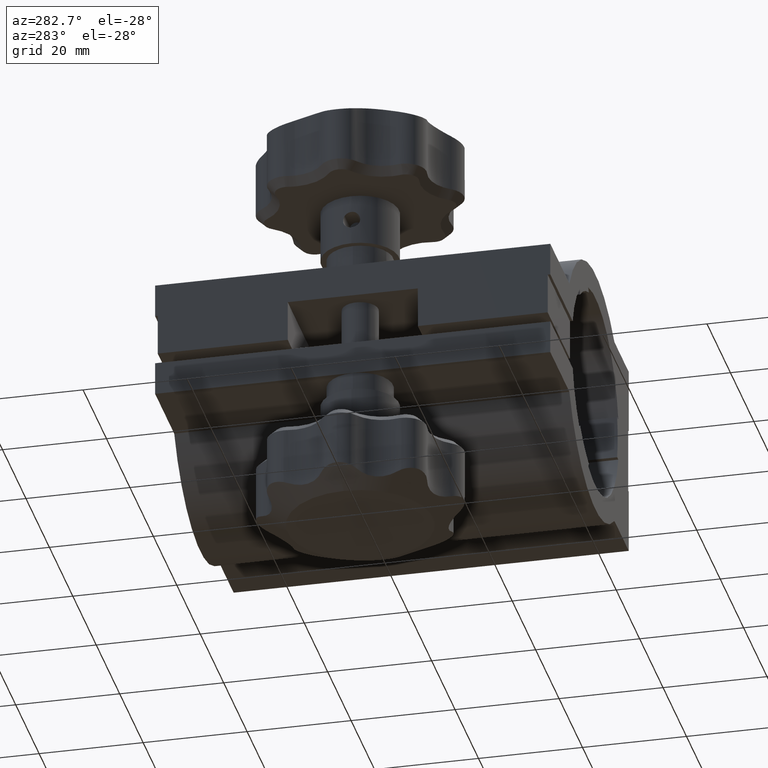
[diagram: clean part render]
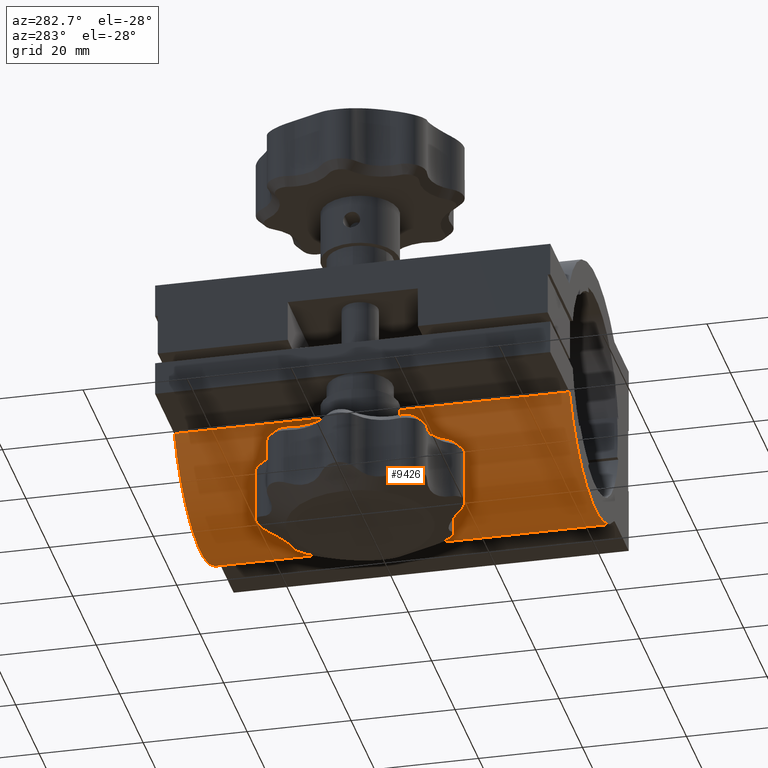
[diagram: same view with one face highlighted and labeled with its STEP entity id]
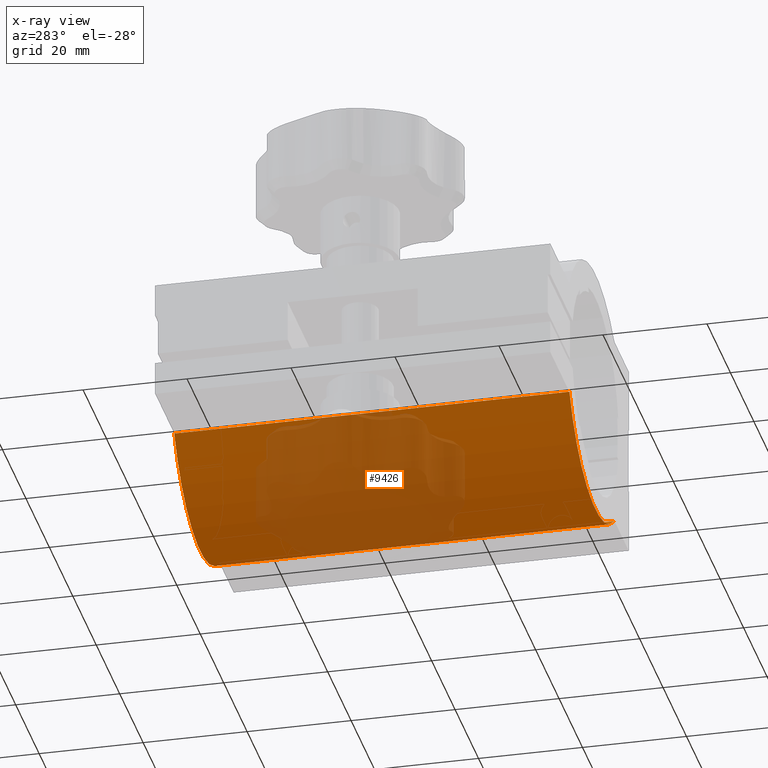
[diagram: x-ray of the same camera — body ghosted, the highlighted face saturated]
A machine part, auxiliary view. The second image highlights one B-rep face of the part: STEP entity #9426.
The next image is the same camera in x-ray: the body ghosted, the highlighted face saturated — about 46% of this face is hidden behind the body in this view.
In plain terms, the highlighted cylindrical surface (partial cylindrical patch) has radius 25 mm, axis along (-0, 1, 0).
Its self-contained STEP definition (entity closure, byte-faithful):
#75 = VERTEX_POINT ( 'NONE', #9879 ) ;
#184 = DIRECTION ( 'NONE',  ( -5.925880749895129100E-031, 1.000000000000000000, 3.170080688461390700E-031 ) ) ;
#353 = ORIENTED_EDGE ( 'NONE', *, *, #5543, .T. ) ;
#578 = VECTOR ( 'NONE', #6187, 1000.000000000000000 ) ;
#594 = VERTEX_POINT ( 'NONE', #868 ) ;
#868 = CARTESIAN_POINT ( 'NONE',  ( -22.19797288042313400, -76.00000000000001400, -11.49999999999984400 ) ) ;
#952 = CIRCLE ( 'NONE', #6715, 25.00000000000000000 ) ;
#1658 = DIRECTION ( 'NONE',  ( 1.000000000000000000, -5.925880749895131700E-031, -3.821246512671355900E-017 ) ) ;
#1972 = CYLINDRICAL_SURFACE ( 'NONE', #2384, 25.00000000000000000 ) ;
#2384 = AXIS2_PLACEMENT_3D ( 'NONE', #2774, #184, #2814 ) ;
#2738 = DIRECTION ( 'NONE',  ( -5.925880749895129100E-031, 1.000000000000000000, 3.170080688461390700E-031 ) ) ;
#2746 = CARTESIAN_POINT ( 'NONE',  ( 2.170155525303524600E-046, -76.00000000000007100, 5.679182220009086700E-030 ) ) ;
#2774 = CARTESIAN_POINT ( 'NONE',  ( 2.170155525303524600E-046, -76.00000000000007100, 5.679182220009086700E-030 ) ) ;
#2814 = DIRECTION ( 'NONE',  ( -1.000000000000000000, 0.0000000000000000000, 3.821246512671355900E-017 ) ) ;
#2980 = CARTESIAN_POINT ( 'NONE',  ( 16.24807680927192900, 1.774744443752839600E-030, -19.00000000000001800 ) ) ;
#3278 = AXIS2_PLACEMENT_3D ( 'NONE', #2746, #3581, #8678 ) ;
#3414 = CARTESIAN_POINT ( 'NONE',  ( 0.0000000000000000000, 0.0000000000000000000, 0.0000000000000000000 ) ) ;
#3505 = FACE_OUTER_BOUND ( 'NONE', #4268, .T. ) ;
#3507 = CIRCLE ( 'NONE', #3278, 25.00000000000000000 ) ;
#3581 = DIRECTION ( 'NONE',  ( 5.925880749895129100E-031, -1.000000000000000000, -3.170080688461390700E-031 ) ) ;
#3931 = EDGE_CURVE ( 'NONE', #594, #9129, #7390, .T. ) ;
#4226 = ORIENTED_EDGE ( 'NONE', *, *, #3931, .T. ) ;
#4268 = EDGE_LOOP ( 'NONE', ( #353, #6334, #5091, #4226 ) ) ;
#5091 = ORIENTED_EDGE ( 'NONE', *, *, #10330, .F. ) ;
#5543 = EDGE_CURVE ( 'NONE', #9129, #7655, #952, .T. ) ;
#6162 = LINE ( 'NONE', #7013, #578 ) ;
#6187 = DIRECTION ( 'NONE',  ( -5.925880749895129100E-031, 1.000000000000000000, 3.170080688461390700E-031 ) ) ;
#6334 = ORIENTED_EDGE ( 'NONE', *, *, #8059, .F. ) ;
#6715 = AXIS2_PLACEMENT_3D ( 'NONE', #3414, #7530, #1658 ) ;
#7013 = CARTESIAN_POINT ( 'NONE',  ( 16.24807680927192900, -75.99999999999998600, -18.99999999999996100 ) ) ;
#7390 = LINE ( 'NONE', #10109, #9364 ) ;
#7530 = DIRECTION ( 'NONE',  ( 5.925880749895129100E-031, -1.000000000000000000, -3.170080688461390700E-031 ) ) ;
#7655 = VERTEX_POINT ( 'NONE', #2980 ) ;
#8059 = EDGE_CURVE ( 'NONE', #75, #7655, #6162, .T. ) ;
#8678 = DIRECTION ( 'NONE',  ( 1.000000000000000000, 0.0000000000000000000, -3.821246512671355900E-017 ) ) ;
#9129 = VERTEX_POINT ( 'NONE', #10084 ) ;
#9364 = VECTOR ( 'NONE', #2738, 1000.000000000000000 ) ;
#9426 = ADVANCED_FACE ( 'NONE', ( #3505 ), #1972, .T. ) ;
#9879 = CARTESIAN_POINT ( 'NONE',  ( 16.24807680927192900, -75.99999999999998600, -18.99999999999996100 ) ) ;
#10084 = CARTESIAN_POINT ( 'NONE',  ( -22.19797288042311900, -2.775557561562891400E-014, -11.49999999999989900 ) ) ;
#10109 = CARTESIAN_POINT ( 'NONE',  ( -22.19797288042313400, -76.00000000000001400, -11.49999999999984400 ) ) ;
#10330 = EDGE_CURVE ( 'NONE', #594, #75, #3507, .T. ) ;